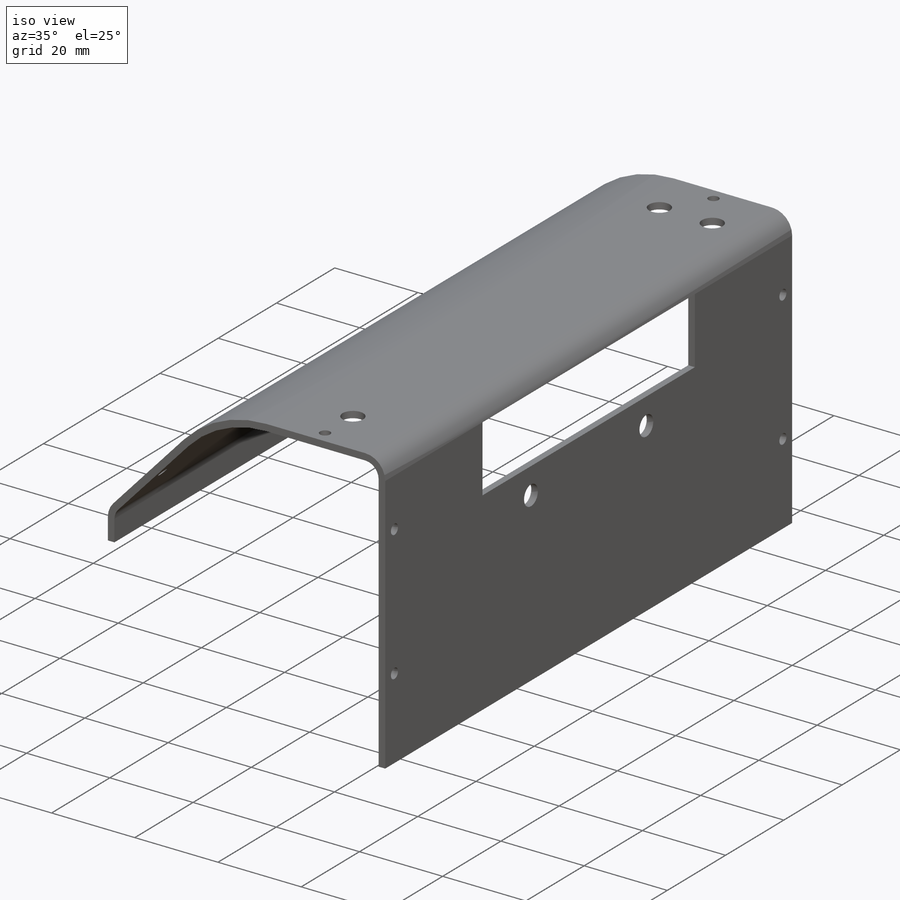
[diagram: iso view]
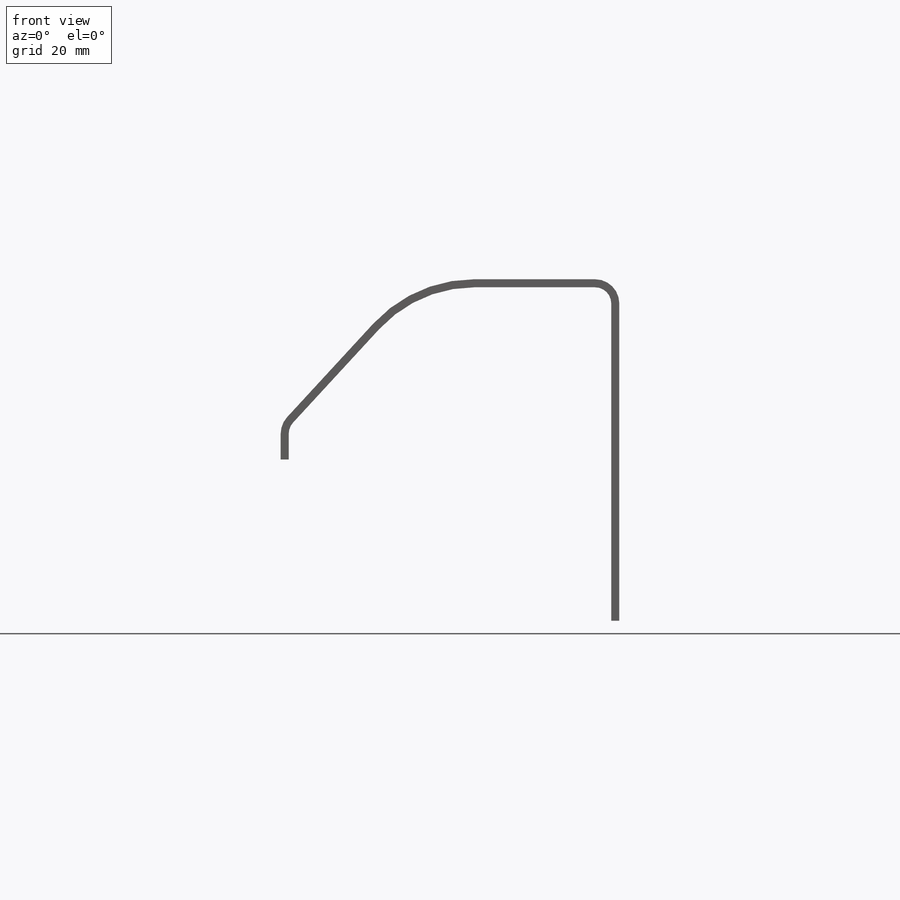
[diagram: front view]
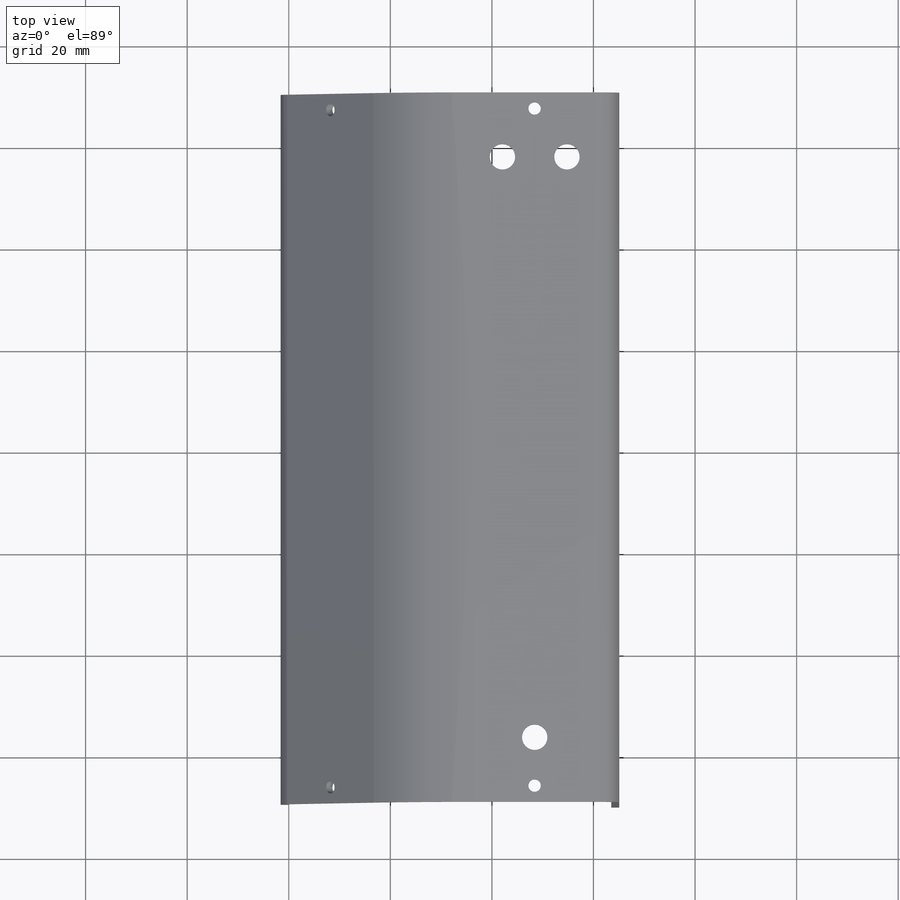
[diagram: top view]
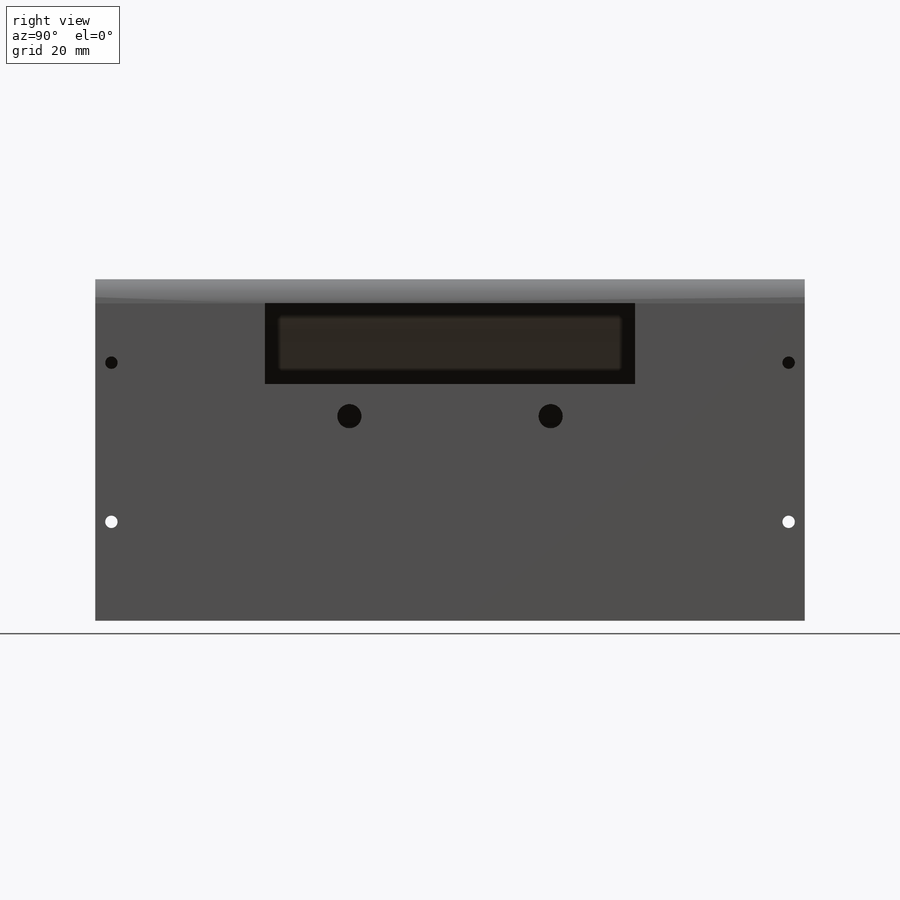
[diagram: right view]
SOLIDWORKS PART (.sldprt)
format: sldprt  version: not decoded by parser v0  size: 365,056 bytes
history: native  units: mm
features: sketch x10, sheet_metal_op x4, hole x3, cut_extrude x2, material x1 + 3 further entries (+16 scaffold rows collapsed; 1 parser-record rows omitted)
feature tree (40):
  scaffold x16  (default folders/planes/origin — collapsed)
  material  "Material <not specified>"
  sketch  "Sketch1"  dims[c1.D5=25.4mm c1.D1=65.659mm c1.D2=63.5mm c1.D3=38.1mm c1.D4=38.1mm c2.D5=25.4mm c3.D5=~18.520849deg c4.D5=~323.249804mm c5.D5=38.1mm c6.D5=~1894.04613mm c7.D5=~26.787368mm c7.D6=6.35mm]
  sheet_metal_op  "Sheet-Metal1"  Thickness=1.5875mm
  sheet_metal_op  "Base-Flange1"
  sheet_metal_op  "BaseBend4"
  sheet_metal_op  "BaseBend5"
  sketch  "Sketch4"  dims[D3=4.7625mm D1=40.259mm D2=19.812mm D4=7.9375mm D5=15.875mm D6=72.898mm D7=59.0296mm D8=6.35mm]
  cut_extrude  "Cut-Extrude3"  Depth=1.5875mm
  hole  "#2 Clearance Hole1"  Diameter=2.4384mm Depth=25.4mm
  sketch  "Sketch6"  dims[D1=3.175mm]
  sketch  "Sketch5"  dims[hole-wizard template sketch: 46 standard entries collapsed; hole parameters kept: c15.Hole Dia.=2.4384mm c15.Hole Depth=25.4mm c15.D3=~14.816244mm c15.Drill Angle=~2059.488517mm]  [1 undecoded]
  sketch  "Sketch23"  dims[D1=5.0mm D2=6.35mm D3=12.7mm D4=12.7mm D5=139.7mm]
  cut_extrude  "Cut-Extrude4"  Depth=1.5875mm
  hole  "#2 Clearance Hole2"  Diameter=2.4384mm Depth=1.5875mm
  sketch  "Sketch25"  dims[c1.D1=3.175mm c1.D2=3.175mm c1.D3=~11.169251mm c1.D4=~12.623239mm c2.D3=11.8745mm]
  sketch  "Sketch24"  dims[hole-wizard template sketch: 46 standard entries collapsed; hole parameters kept: c15.Hole Dia.=2.4384mm c15.Hole Depth=1.5875mm c15.D3=~14.816244mm c15.Drill Angle=~2059.488517mm]  [1 undecoded]
  hole  "#2 Clearance Hole5"  Diameter=2.4384mm Depth=1.524mm
  sketch  "Sketch33"  dims[D1=12.573mm D2=3.175mm D3=3.175mm D4=12.573mm]
  sketch  "Sketch32"  dims[hole-wizard template sketch: 46 standard entries collapsed; hole parameters kept: c15.Hole Dia.=2.4384mm c15.Hole Depth=1.524mm c15.D3=~14.816244mm c15.Drill Angle=~2059.488517mm]  [1 undecoded]
  "Flat-Pattern1"
  sketch  "Bend-Lines1"
  "Flatten-<BaseBend4>1"
  parser-record x1  (decoder bookkeeping rows leaked as tree rows — omitted from the tree; the rows remain in map.json)
  "Flatten-<BaseBend5>1"
decode coverage: 15 of 19 modeling features carry decoded parameters; 3 rows unclassified (native names shown)
note: ~ marks probable driven/reference dimensions
note: suppression state not decoded; provenance and decode notes live in map.json
note: 3 required parameter values undecoded (feature->parameter linkage not recoverable at this tier; creation-order binding heuristic only, values carry confidence <= 0.55)
